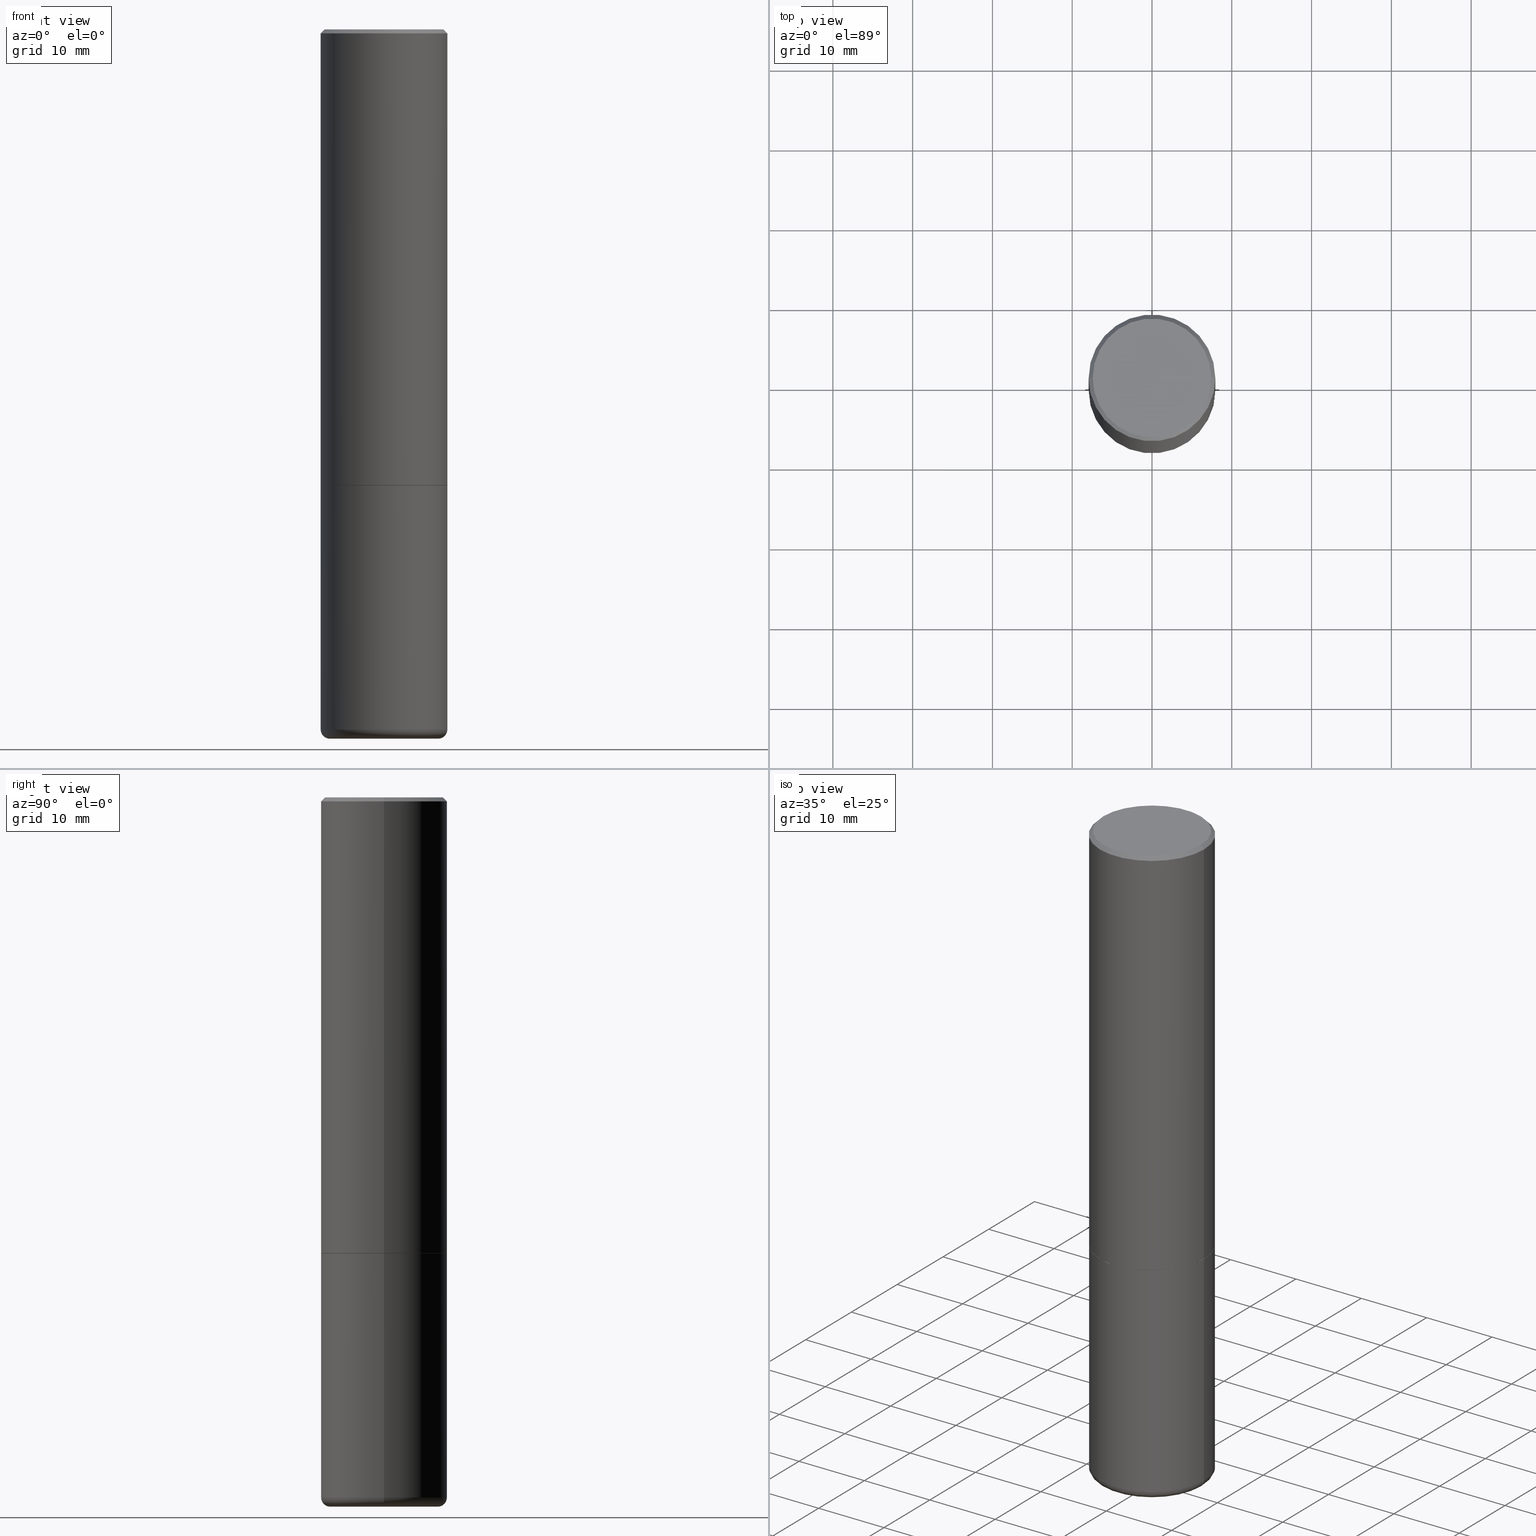
[diagram: canonical four-view strip — front | top / right | iso, engineering-drawing reading convention]
A machine part, canonical four-view strip (front | top / right | iso — engineering-drawing reading convention). The complete STEP part file that produces these views, byte-faithful:
ISO-10303-21;
HEADER;
FILE_DESCRIPTION (( 'STEP AP203' ),
    '1' );
FILE_NAME ('38182.STEP',
    '2023-03-22T20:30:40',
    ( '' ),
    ( '' ),
    'SwSTEP 2.0',
    'SolidWorks 2022',
    '' );
FILE_SCHEMA (( 'CONFIG_CONTROL_DESIGN' ));
ENDSEC;

DATA;
#1 = CARTESIAN_POINT ( 'NONE',  ( 4.890937612370276662E-31, -6.982962677686296539E-17, -0.02000000000000001776 ) ) ;
#2 = EDGE_CURVE ( 'NONE', #299, #61, #117, .T. ) ;
#3 = CONICAL_SURFACE ( 'NONE', #217, 751.2258538476612557, 1.518436449235073260 ) ;
#4 = ORIENTED_EDGE ( 'NONE', *, *, #275, .F. ) ;
#5 =( LENGTH_UNIT ( ) NAMED_UNIT ( * ) SI_UNIT ( $, .METRE. ) );
#6 = ADVANCED_FACE ( 'NONE', ( #432 ), #110, .T. ) ;
#7 = VERTEX_POINT ( 'NONE', #430 ) ;
#8 = FACE_OUTER_BOUND ( 'NONE', #191, .T. ) ;
#9 = CARTESIAN_POINT ( 'NONE',  ( 0.3125000000000000000, -1.003800884917403364E-14, -2.249999999999999556 ) ) ;
#10 = AXIS2_PLACEMENT_3D ( 'NONE', #254, #113, #114 ) ;
#11 = CIRCLE ( 'NONE', #212, 0.3124999999999998335 ) ;
#12 = EDGE_CURVE ( 'NONE', #231, #301, #193, .T. ) ;
#13 = PERSON_AND_ORGANIZATION ( #100, #150 ) ;
#14 = DATE_TIME_ROLE ( 'creation_date' ) ;
#15 = ORIENTED_EDGE ( 'NONE', *, *, #422, .F. ) ;
#16 = CIRCLE ( 'NONE', #223, 0.3114999999999999991 ) ;
#17 = COORDINATED_UNIVERSAL_TIME_OFFSET ( 5, 0, .BEHIND. ) ;
#18 = DIRECTION ( 'NONE',  ( 1.000000000000000000, -6.982962677686265922E-15, 0.000000000000000000 ) ) ;
#19 = CALENDAR_DATE ( 2023, 22, 3 ) ;
#20 = DIRECTION ( 'NONE',  ( -2.445468806185136597E-29, 3.491481338843145583E-15, 1.000000000000000000 ) ) ;
#21 = EDGE_CURVE ( 'NONE', #227, #231, #427, .T. ) ;
#22 = CARTESIAN_POINT ( 'NONE',  ( -0.2651448819690678804, -1.008952714362760311E-14, -3.500000000000000000 ) ) ;
#23 = EDGE_CURVE ( 'NONE', #108, #7, #323, .T. ) ;
#24 = AXIS2_PLACEMENT_3D ( 'NONE', #200, #168, #278 ) ;
#25 = EDGE_CURVE ( 'NONE', #374, #132, #16, .T. ) ;
#26 = DIRECTION ( 'NONE',  ( -2.445468806185136597E-29, 3.491481338843145583E-15, 1.000000000000000000 ) ) ;
#27 = FACE_OUTER_BOUND ( 'NONE', #367, .T. ) ;
#28 = ORIENTED_EDGE ( 'NONE', *, *, #111, .F. ) ;
#29 = PLANE ( 'NONE',  #419 ) ;
#30 = DIMENSIONAL_EXPONENTS ( 1.000000000000000000, 0.000000000000000000, 0.000000000000000000, 0.000000000000000000, 0.000000000000000000, 0.000000000000000000, 0.000000000000000000 ) ;
#31 = CONICAL_SURFACE ( 'NONE', #140, 0.3114999999999999991, 0.7853981633972775267 ) ;
#32 = DIRECTION ( 'NONE',  ( -2.445468806185136597E-29, 3.491481338843145583E-15, 1.000000000000000000 ) ) ;
#33 = VERTEX_POINT ( 'NONE', #289 ) ;
#34 = DIRECTION ( 'NONE',  ( 1.000000000000000000, -6.982962677686266711E-15, 4.876176775795935232E-29 ) ) ;
#35 = ORIENTED_EDGE ( 'NONE', *, *, #89, .F. ) ;
#36 = DIRECTION ( 'NONE',  ( -2.445468806185136877E-29, 3.491481338843145188E-15, 1.000000000000000000 ) ) ;
#37 = ORIENTED_EDGE ( 'NONE', *, *, #23, .F. ) ;
#38 = ADVANCED_FACE ( 'NONE', ( #118 ), #214, .T. ) ;
#39 = FACE_OUTER_BOUND ( 'NONE', #338, .T. ) ;
#40 = AXIS2_PLACEMENT_3D ( 'NONE', #375, #71, #169 ) ;
#41 = DIRECTION ( 'NONE',  ( 2.445468806185136597E-29, -3.491481338843145583E-15, -1.000000000000000000 ) ) ;
#42 = DIRECTION ( 'NONE',  ( 0.7071067811865469066, -7.319954787623252890E-15, -0.7071067811865479058 ) ) ;
#43 = FACE_OUTER_BOUND ( 'NONE', #72, .T. ) ;
#44 = CALENDAR_DATE ( 2023, 22, 3 ) ;
#45 = CARTESIAN_POINT ( 'NONE',  ( 5.502304813916556222E-29, -7.855833012397075293E-15, -2.249999999999999556 ) ) ;
#46 = COORDINATED_UNIVERSAL_TIME_OFFSET ( 5, 0, .BEHIND. ) ;
#47 = EDGE_CURVE ( 'NONE', #61, #299, #149, .T. ) ;
#48 = MECHANICAL_CONTEXT ( 'NONE', #339, 'mechanical' ) ;
#49 = CC_DESIGN_DATE_AND_TIME_ASSIGNMENT ( #355, #14, ( #267 ) ) ;
#50 = CIRCLE ( 'NONE', #326, 0.3125000000000000000 ) ;
#51 = LOCAL_TIME ( 16, 30, 40.00000000000000000, #46 ) ;
#52 = COORDINATED_UNIVERSAL_TIME_OFFSET ( 5, 0, .BEHIND. ) ;
#53 = DIRECTION ( 'NONE',  ( 1.000000000000000000, -6.982962677686266711E-15, 4.876176775795936353E-29 ) ) ;
#54 = PERSON_AND_ORGANIZATION_ROLE ( 'design_supplier' ) ;
#55 = DIRECTION ( 'NONE',  ( 1.000000000000000000, -6.982962677686265922E-15, 0.000000000000000000 ) ) ;
#56 = DIRECTION ( 'NONE',  ( -2.445468806185136597E-29, 3.491481338843145583E-15, 1.000000000000000000 ) ) ;
#57 = ORIENTED_EDGE ( 'NONE', *, *, #335, .T. ) ;
#58 = FACE_OUTER_BOUND ( 'NONE', #370, .T. ) ;
#59 = ORIENTED_EDGE ( 'NONE', *, *, #89, .T. ) ;
#60 = CARTESIAN_POINT ( 'NONE',  ( -2.050015395373058161E-19, -1.217166826773992568E-14, -3.486104345547738514 ) ) ;
#61 = VERTEX_POINT ( 'NONE', #22 ) ;
#62 = AXIS2_PLACEMENT_3D ( 'NONE', #154, #32, #440 ) ;
#63 = CARTESIAN_POINT ( 'NONE',  ( -0.3125000000000000000, -7.739112131260931893E-15, -3.455061670936044216 ) ) ;
#64 = CARTESIAN_POINT ( 'NONE',  ( -0.3125000000000000000, -1.740639529667232739E-15, -2.248999999999999222 ) ) ;
#65 = ORIENTED_EDGE ( 'NONE', *, *, #116, .T. ) ;
#66 = CARTESIAN_POINT ( 'NONE',  ( 1.048034588882512041E-27, -1.496315634977850062E-13, -42.85618308570521862 ) ) ;
#67 = CARTESIAN_POINT ( 'NONE',  ( 4.890937612370276662E-31, -6.982962677686296539E-17, -0.02000000000000001776 ) ) ;
#68 = CIRCLE ( 'NONE', #40, 0.3125000000000000000 ) ;
#69 = CC_DESIGN_SECURITY_CLASSIFICATION ( #402, ( #256 ) ) ;
#70 = DIRECTION ( 'NONE',  ( -1.000000000000000000, 6.982962677686265133E-15, 0.000000000000000000 ) ) ;
#71 = DIRECTION ( 'NONE',  ( -2.445468806185136597E-29, 3.491481338843145583E-15, 1.000000000000000000 ) ) ;
#72 = EDGE_LOOP ( 'NONE', ( #90, #59, #164, #198 ) ) ;
#73 = CARTESIAN_POINT ( 'NONE',  ( 8.559140821647976968E-29, -1.222018468595100934E-14, -3.500000000000000000 ) ) ;
#74 = CONICAL_SURFACE ( 'NONE', #318, 0.3124999999999998335, 0.7853981633974476129 ) ;
#75 = VERTEX_POINT ( 'NONE', #315 ) ;
#76 = CALENDAR_DATE ( 2023, 22, 3 ) ;
#77 = DIRECTION ( 'NONE',  ( 0.000000000000000000, 0.000000000000000000, 1.000000000000000000 ) ) ;
#78 = DIRECTION ( 'NONE',  ( 1.000000000000000000, -6.982962677686266711E-15, 0.000000000000000000 ) ) ;
#79 = PERSON_AND_ORGANIZATION_ROLE ( 'classification_officer' ) ;
#80 = TOROIDAL_SURFACE ( 'NONE', #180, 0.2675000000000000155, 0.04499999999999999140 ) ;
#81 =( NAMED_UNIT ( * ) PLANE_ANGLE_UNIT ( ) SI_UNIT ( $, .RADIAN. ) );
#82 = CARTESIAN_POINT ( 'NONE',  ( 8.449245539719989979E-29, -1.206328334862541465E-14, -3.455061670936044216 ) ) ;
#83 = APPROVAL ( #384, 'UNSPECIFIED' ) ;
#84 = CARTESIAN_POINT ( 'NONE',  ( 2.042516583223231356E-15, 0.2924999999999998157, -1.019124035366569212E-15 ) ) ;
#85 = ORIENTED_EDGE ( 'NONE', *, *, #207, .T. ) ;
#86 = ADVANCED_FACE ( 'NONE', ( #282 ), #251, .T. ) ;
#87 = CIRCLE ( 'NONE', #62, 0.3125000000000000000 ) ;
#88 = CARTESIAN_POINT ( 'NONE',  ( 0.000000000000000000, 0.000000000000000000, 0.000000000000000000 ) ) ;
#89 = EDGE_CURVE ( 'NONE', #132, #374, #253, .T. ) ;
#90 = ORIENTED_EDGE ( 'NONE', *, *, #141, .F. ) ;
#91 = APPROVAL ( #351, 'UNSPECIFIED' ) ;
#92 = CARTESIAN_POINT ( 'NONE',  ( 0.3125000000000000000, -2.182175836776958347E-15, 1.523805242436230075E-29 ) ) ;
#93 = ORIENTED_EDGE ( 'NONE', *, *, #103, .T. ) ;
#94 = ADVANCED_FACE ( 'NONE', ( #400 ), #157, .T. ) ;
#95 = CARTESIAN_POINT ( 'NONE',  ( 2.050015397078090200E-19, -1.217166826773992568E-14, -3.486104345547738514 ) ) ;
#96 = ORIENTED_EDGE ( 'NONE', *, *, #237, .F. ) ;
#97 = CONICAL_SURFACE ( 'NONE', #293, 0.3124999999999998335, 0.7853981633974476129 ) ;
#98 = DIRECTION ( 'NONE',  ( 1.000000000000000000, -6.982962677686265922E-15, 0.000000000000000000 ) ) ;
#99 = EDGE_LOOP ( 'NONE', ( #155, #403, #436, #96 ) ) ;
#100 = PERSON ( 'UNSPECIFIED', 'UNSPECIFIED', 'UNSPECIFIED', ('UNSPECIFIED'), ('UNSPECIFIED'), ('UNSPECIFIED') ) ;
#101 = CARTESIAN_POINT ( 'NONE',  ( 5.502304813916556222E-29, -7.855833012397076871E-15, -2.249999999999999556 ) ) ;
#102 = CARTESIAN_POINT ( 'NONE',  ( 2.182175836777013173E-15, 0.3124999999999921729, -2.250000000000000444 ) ) ;
#103 = EDGE_CURVE ( 'NONE', #61, #227, #437, .T. ) ;
#104 = CARTESIAN_POINT ( 'NONE',  ( 0.3124999999999998890, -2.182175836776957558E-15, 1.523805242436229235E-29 ) ) ;
#105 = AXIS2_PLACEMENT_3D ( 'NONE', #222, #438, #297 ) ;
#106 = LOCAL_TIME ( 16, 30, 40.00000000000000000, #394 ) ;
#107 = CARTESIAN_POINT ( 'NONE',  ( 0.2924999999999998157, -2.110215457714318748E-15, 4.268512490114932791E-18 ) ) ;
#108 = VERTEX_POINT ( 'NONE', #294 ) ;
#109 = DIRECTION ( 'NONE',  ( 1.000000000000000000, -6.982962677686266711E-15, 4.876176775795936353E-29 ) ) ;
#110 = CYLINDRICAL_SURFACE ( 'NONE', #347, 0.3125000000000000000 ) ;
#111 = EDGE_CURVE ( 'NONE', #330, #227, #284, .T. ) ;
#112 = PERSON_AND_ORGANIZATION ( #100, #150 ) ;
#113 = DIRECTION ( 'NONE',  ( -2.445468806185136597E-29, 3.491481338843145583E-15, 1.000000000000000000 ) ) ;
#114 = DIRECTION ( 'NONE',  ( 1.000000000000000000, -6.982962677686269077E-15, 4.883557194083114022E-29 ) ) ;
#115 = CC_DESIGN_APPROVAL ( #358, ( #267 ) ) ;
#116 = EDGE_CURVE ( 'NONE', #7, #421, #426, .T. ) ;
#117 = CIRCLE ( 'NONE', #210, 0.2651448819690678804 ) ;
#118 = FACE_OUTER_BOUND ( 'NONE', #208, .T. ) ;
#119 = MANIFOLD_SOLID_BREP ( 'Body-Move/Copy2[1]', #313 ) ;
#120 = CARTESIAN_POINT ( 'NONE',  ( 5.499859345110370619E-29, -7.852341531058232286E-15, -2.248999999999999222 ) ) ;
#121 = EDGE_LOOP ( 'NONE', ( #364, #328, #349 ) ) ;
#122 = CARTESIAN_POINT ( 'NONE',  ( -0.2675000000000000155, -1.016258153046714615E-14, -3.455061670936044216 ) ) ;
#123 = ORIENTED_EDGE ( 'NONE', *, *, #257, .T. ) ;
#124 = LOCAL_TIME ( 16, 30, 40.00000000000000000, #17 ) ;
#125 = MANIFOLD_SOLID_BREP ( 'Body-Move/Copy2[2]', #204 ) ;
#126 = DIRECTION ( 'NONE',  ( -2.438088387897960049E-29, 3.491481338843145188E-15, 1.000000000000000000 ) ) ;
#127 = EDGE_LOOP ( 'NONE', ( #398, #439, #85, #336 ) ) ;
#128 = PRODUCT ( '38182', '38182', '', ( #48 ) ) ;
#129 = DIRECTION ( 'NONE',  ( -2.445468806185136597E-29, 3.491481338843145583E-15, 1.000000000000000000 ) ) ;
#130 = ADVANCED_FACE ( 'NONE', ( #27 ), #80, .T. ) ;
#131 = CARTESIAN_POINT ( 'NONE',  ( 0.3124999999999998335, -2.213735251080465334E-15, -0.02000000000000001776 ) ) ;
#132 = VERTEX_POINT ( 'NONE', #435 ) ;
#133 = VECTOR ( 'NONE', #363, 39.37007874015748143 ) ;
#134 = DIRECTION ( 'NONE',  ( -1.000000000000000000, 6.982962677686266711E-15, 0.000000000000000000 ) ) ;
#135 = LOCAL_TIME ( 16, 30, 40.00000000000000000, #52 ) ;
#136 = ORIENTED_EDGE ( 'NONE', *, *, #23, .T. ) ;
#137 = LINE ( 'NONE', #276, #224 ) ;
#138 = DIRECTION ( 'NONE',  ( 1.000000000000000000, -6.982962677686265133E-15, 0.000000000000000000 ) ) ;
#139 = EDGE_CURVE ( 'NONE', #376, #33, #50, .T. ) ;
#140 = AXIS2_PLACEMENT_3D ( 'NONE', #101, #279, #98 ) ;
#141 = EDGE_CURVE ( 'NONE', #132, #376, #185, .T. ) ;
#142 = SECURITY_CLASSIFICATION_LEVEL ( 'unclassified' ) ;
#143 = PERSON_AND_ORGANIZATION ( #100, #150 ) ;
#144 = DIRECTION ( 'NONE',  ( -2.445468806185136597E-29, 3.491481338843145583E-15, 1.000000000000000000 ) ) ;
#145 = VECTOR ( 'NONE', #209, 39.37007874015748143 ) ;
#146 = DATE_AND_TIME ( #211, #106 ) ;
#147 = DIRECTION ( 'NONE',  ( 1.000000000000000000, 0.000000000000000000, 0.000000000000000000 ) ) ;
#148 = DIRECTION ( 'NONE',  ( -2.445468806185136877E-29, 3.491481338843145188E-15, 1.000000000000000000 ) ) ;
#149 = CIRCLE ( 'NONE', #196, 0.2651448819690678804 ) ;
#150 = ORGANIZATION ( 'UNSPECIFIED', 'UNSPECIFIED', '' ) ;
#151 = CARTESIAN_POINT ( 'NONE',  ( 5.502304813916556222E-29, -7.855833012397076871E-15, -2.249999999999999556 ) ) ;
#152 = CYLINDRICAL_SURFACE ( 'NONE', #341, 0.3124999999999998890 ) ;
#153 = ORIENTED_EDGE ( 'NONE', *, *, #47, .T. ) ;
#154 = CARTESIAN_POINT ( 'NONE',  ( 8.449245539719989979E-29, -1.206328334862541465E-14, -3.455061670936044216 ) ) ;
#155 = ORIENTED_EDGE ( 'NONE', *, *, #429, .T. ) ;
#156 = AXIS2_PLACEMENT_3D ( 'NONE', #88, #56, #34 ) ;
#157 = CYLINDRICAL_SURFACE ( 'NONE', #156, 0.3124999999999998890 ) ;
#158 = ORIENTED_EDGE ( 'NONE', *, *, #335, .F. ) ;
#159 = DIRECTION ( 'NONE',  ( 1.000000000000000000, -6.982962677686266711E-15, 4.876067333457692840E-29 ) ) ;
#160 = ORIENTED_EDGE ( 'NONE', *, *, #25, .F. ) ;
#161 = ADVANCED_FACE ( 'NONE', ( #58 ), #325, .F. ) ;
#162 = CC_DESIGN_PERSON_AND_ORGANIZATION_ASSIGNMENT ( #352, #178, ( #267 ) ) ;
#163 = CARTESIAN_POINT ( 'NONE',  ( 5.502304813916556222E-29, -7.855833012397075293E-15, -2.249999999999999556 ) ) ;
#164 = ORIENTED_EDGE ( 'NONE', *, *, #422, .T. ) ;
#165 = VECTOR ( 'NONE', #247, 39.37007874015748854 ) ;
#166 = CONICAL_SURFACE ( 'NONE', #24, 0.3114999999999999991, 0.7853981633972775267 ) ;
#167 = CARTESIAN_POINT ( 'NONE',  ( 0.3124999999999998335, -2.213735251080465334E-15, -0.02000000000000001776 ) ) ;
#168 = DIRECTION ( 'NONE',  ( -2.445468806185136597E-29, 3.491481338843145583E-15, 1.000000000000000000 ) ) ;
#169 = DIRECTION ( 'NONE',  ( 1.000000000000000000, -6.982962677686269077E-15, 0.000000000000000000 ) ) ;
#170 = EDGE_CURVE ( 'NONE', #299, #330, #187, .T. ) ;
#171 = DIRECTION ( 'NONE',  ( -2.445468806185136597E-29, 3.491481338843145583E-15, 1.000000000000000000 ) ) ;
#172 = CONICAL_SURFACE ( 'NONE', #361, 751.2258538476612557, 1.518436449235073260 ) ;
#173 = ADVANCED_FACE ( 'NONE', ( #331 ), #152, .T. ) ;
#174 = CC_DESIGN_PERSON_AND_ORGANIZATION_ASSIGNMENT ( #13, #244, ( #128 ) ) ;
#175 = DIRECTION ( 'NONE',  ( 1.000000000000000000, -6.982962677686266711E-15, 0.000000000000000000 ) ) ;
#176 = ORIENTED_EDGE ( 'NONE', *, *, #302, .F. ) ;
#177 = LENGTH_MEASURE_WITH_UNIT ( LENGTH_MEASURE( 0.02539999999999999897 ), #5 );
#178 = PERSON_AND_ORGANIZATION_ROLE ( 'creator' ) ;
#179 = CARTESIAN_POINT ( 'NONE',  ( 0.000000000000000000, 0.000000000000000000, 0.000000000000000000 ) ) ;
#180 = AXIS2_PLACEMENT_3D ( 'NONE', #221, #229, #360 ) ;
#181 = COORDINATED_UNIVERSAL_TIME_OFFSET ( 5, 0, .BEHIND. ) ;
#182 = CARTESIAN_POINT ( 'NONE',  ( 5.502304813916556222E-29, -7.855833012397076871E-15, -2.249999999999999556 ) ) ;
#183 = APPROVAL_DATE_TIME ( #283, #91 ) ;
#184 = ORIENTED_EDGE ( 'NONE', *, *, #203, .F. ) ;
#185 = LINE ( 'NONE', #365, #133 ) ;
#186 = EDGE_CURVE ( 'NONE', #75, #61, #329, .T. ) ;
#187 = CIRCLE ( 'NONE', #105, 0.04499999999999999833 ) ;
#188 = DIRECTION ( 'NONE',  ( 1.000000000000000000, -6.982962677686266711E-15, 0.000000000000000000 ) ) ;
#189 = EDGE_LOOP ( 'NONE', ( #307, #236, #265, #304 ) ) ;
#190 = DIRECTION ( 'NONE',  ( 1.000000000000000000, -6.982962677686265922E-15, 4.876176775795935793E-29 ) ) ;
#191 = EDGE_LOOP ( 'NONE', ( #381, #386 ) ) ;
#192 = CARTESIAN_POINT ( 'NONE',  ( 4.890937612370276662E-31, -6.982962677686296539E-17, -0.02000000000000001776 ) ) ;
#193 = CIRCLE ( 'NONE', #371, 0.3125000000000000000 ) ;
#194 = EDGE_LOOP ( 'NONE', ( #416, #262, #4, #272 ) ) ;
#195 = VECTOR ( 'NONE', #368, 39.37007874015748854 ) ;
#196 = AXIS2_PLACEMENT_3D ( 'NONE', #219, #385, #175 ) ;
#197 = CARTESIAN_POINT ( 'NONE',  ( -1.043851414335219820E-46, 1.490343170380447200E-32, 4.268512490100411279E-18 ) ) ;
#198 = ORIENTED_EDGE ( 'NONE', *, *, #139, .F. ) ;
#199 = ADVANCED_FACE ( 'NONE', ( #397 ), #29, .F. ) ;
#200 = CARTESIAN_POINT ( 'NONE',  ( 5.502304813916556222E-29, -7.855833012397076871E-15, -2.249999999999999556 ) ) ;
#201 = ORIENTED_EDGE ( 'NONE', *, *, #141, .T. ) ;
#202 = PLANE ( 'NONE',  #246 ) ;
#203 = EDGE_CURVE ( 'NONE', #227, #330, #87, .T. ) ;
#204 = CLOSED_SHELL ( 'NONE', ( #383, #94, #366, #287, #173, #292, #161, #199 ) ) ;
#205 = CARTESIAN_POINT ( 'NONE',  ( 0.3114999999999999991, -1.003102588649634920E-14, -2.249999999999999556 ) ) ;
#206 = FACE_OUTER_BOUND ( 'NONE', #225, .T. ) ;
#207 = EDGE_CURVE ( 'NONE', #330, #301, #296, .T. ) ;
#208 = EDGE_LOOP ( 'NONE', ( #420, #153, #353, #184 ) ) ;
#209 = DIRECTION ( 'NONE',  ( -2.445468806185136877E-29, 3.491481338843145188E-15, 1.000000000000000000 ) ) ;
#210 = AXIS2_PLACEMENT_3D ( 'NONE', #73, #291, #78 ) ;
#211 = CALENDAR_DATE ( 2023, 22, 3 ) ;
#212 = AXIS2_PLACEMENT_3D ( 'NONE', #346, #382, #377 ) ;
#213 = APPROVAL_PERSON_ORGANIZATION ( #389, #83, #319 ) ;
#214 = TOROIDAL_SURFACE ( 'NONE', #10, 0.2675000000000000155, 0.04499999999999999140 ) ;
#215 = DATE_TIME_ROLE ( 'classification_date' ) ;
#216 = APPLICATION_PROTOCOL_DEFINITION ( 'international standard', 'config_control_design', 1994, #413 ) ;
#217 = AXIS2_PLACEMENT_3D ( 'NONE', #66, #418, #310 ) ;
#218 = APPROVAL_DATE_TIME ( #146, #83 ) ;
#219 = CARTESIAN_POINT ( 'NONE',  ( 8.559140821647976968E-29, -1.222018468595100934E-14, -3.500000000000000000 ) ) ;
#220 = EDGE_CURVE ( 'NONE', #75, #299, #407, .T. ) ;
#221 = CARTESIAN_POINT ( 'NONE',  ( 8.449245539719989979E-29, -1.206328334862541465E-14, -3.455061670936044216 ) ) ;
#222 = CARTESIAN_POINT ( 'NONE',  ( 0.2675000000000000155, -1.393122586490649131E-14, -3.455061670936044216 ) ) ;
#223 = AXIS2_PLACEMENT_3D ( 'NONE', #390, #321, #18 ) ;
#224 = VECTOR ( 'NONE', #235, 39.37007874015748143 ) ;
#225 = EDGE_LOOP ( 'NONE', ( #441, #356, #277 ) ) ;
#226 = DIRECTION ( 'NONE',  ( 1.000000000000000000, -6.982962677686269077E-15, 0.000000000000000000 ) ) ;
#227 = VERTEX_POINT ( 'NONE', #63 ) ;
#228 = DIRECTION ( 'NONE',  ( -2.445468806185136597E-29, 3.491481338843145583E-15, 1.000000000000000000 ) ) ;
#229 = DIRECTION ( 'NONE',  ( -2.445468806185136597E-29, 3.491481338843145583E-15, 1.000000000000000000 ) ) ;
#230 = EDGE_CURVE ( 'NONE', #108, #239, #387, .T. ) ;
#231 = VERTEX_POINT ( 'NONE', #303 ) ;
#232 = VECTOR ( 'NONE', #259, 39.37007874015748854 ) ;
#233 = DIRECTION ( 'NONE',  ( 1.000000000000000000, -6.982962677686266711E-15, 4.876067333457692840E-29 ) ) ;
#234 = EDGE_LOOP ( 'NONE', ( #406, #201, #242, #15 ) ) ;
#235 = DIRECTION ( 'NONE',  ( 0.7071067811864267805, -2.468850131080992517E-15, 0.7071067811866682540 ) ) ;
#236 = ORIENTED_EDGE ( 'NONE', *, *, #139, .T. ) ;
#237 = EDGE_CURVE ( 'NONE', #33, #421, #442, .T. ) ;
#238 = CARTESIAN_POINT ( 'NONE',  ( 1.048034588882512041E-27, -1.496315634977850062E-13, -42.85618308570521862 ) ) ;
#239 = VERTEX_POINT ( 'NONE', #107 ) ;
#240 = AXIS2_PLACEMENT_3D ( 'NONE', #163, #412, #138 ) ;
#241 = DIRECTION ( 'NONE',  ( 2.445468806185136597E-29, -3.491481338843145583E-15, -1.000000000000000000 ) ) ;
#242 = ORIENTED_EDGE ( 'NONE', *, *, #429, .F. ) ;
#243 = FACE_OUTER_BOUND ( 'NONE', #234, .T. ) ;
#244 = PERSON_AND_ORGANIZATION_ROLE ( 'design_owner' ) ;
#245 = PERSON_AND_ORGANIZATION ( #100, #150 ) ;
#246 = AXIS2_PLACEMENT_3D ( 'NONE', #102, #409, #340 ) ;
#247 = DIRECTION ( 'NONE',  ( -0.7071067811865469066, 2.468850131082251144E-15, -0.7071067811865479058 ) ) ;
#248 = CARTESIAN_POINT ( 'NONE',  ( -0.3125000000000000000, 2.220446049250313081E-15, -1.537167215704658232E-29 ) ) ;
#249 = ADVANCED_FACE ( 'NONE', ( #343 ), #3, .F. ) ;
#250 = DATE_AND_TIME ( #19, #286 ) ;
#251 = CYLINDRICAL_SURFACE ( 'NONE', #433, 0.3125000000000000000 ) ;
#252 = APPROVAL_DATE_TIME ( #250, #358 ) ;
#253 = CIRCLE ( 'NONE', #311, 0.3114999999999999991 ) ;
#254 = CARTESIAN_POINT ( 'NONE',  ( 8.449245539719989979E-29, -1.206328334862541465E-14, -3.455061670936044216 ) ) ;
#255 = VECTOR ( 'NONE', #42, 39.37007874015748854 ) ;
#256 = PRODUCT_DEFINITION_FORMATION_WITH_SPECIFIED_SOURCE ( 'ANY', '', #128, .NOT_KNOWN. ) ;
#257 = EDGE_CURVE ( 'NONE', #421, #7, #11, .T. ) ;
#258 = DIRECTION ( 'NONE',  ( -1.000000000000000000, 7.105427357600990815E-15, 0.000000000000000000 ) ) ;
#259 = DIRECTION ( 'NONE',  ( -0.9986295347545742773, 6.790662755453664522E-15, -0.05233595624293731902 ) ) ;
#260 = DIRECTION ( 'NONE',  ( 7.105427357601001859E-15, 1.000000000000000000, -3.491481338843145583E-15 ) ) ;
#261 = CIRCLE ( 'NONE', #298, 0.2924999999999998157 ) ;
#262 = ORIENTED_EDGE ( 'NONE', *, *, #21, .T. ) ;
#263 = SHAPE_DEFINITION_REPRESENTATION ( #270, #373 ) ;
#264 = DIRECTION ( 'NONE',  ( -1.000000000000000000, 6.982962677686265922E-15, -4.876176775795935793E-29 ) ) ;
#265 = ORIENTED_EDGE ( 'NONE', *, *, #237, .T. ) ;
#266 = ADVANCED_FACE ( 'NONE', ( #8 ), #202, .F. ) ;
#267 = PRODUCT_DEFINITION ( 'UNKNOWN', '', #256, #379 ) ;
#268 = DIRECTION ( 'NONE',  ( -2.445468806185136877E-29, 3.491481338843145188E-15, 1.000000000000000000 ) ) ;
#269 = ORIENTED_EDGE ( 'NONE', *, *, #230, .F. ) ;
#271 = CARTESIAN_POINT ( 'NONE',  ( 0.3125000000000000000, -1.424545918540237458E-14, -3.455061670936044216 ) ) ;
#270 = PRODUCT_DEFINITION_SHAPE ( 'NONE', 'NONE',  #267 ) ;
#272 = ORIENTED_EDGE ( 'NONE', *, *, #207, .F. ) ;
#273 = VECTOR ( 'NONE', #36, 39.37007874015748143 ) ;
#274 = APPROVAL_PERSON_ORGANIZATION ( #143, #91, #290 ) ;
#275 = EDGE_CURVE ( 'NONE', #301, #231, #308, .T. ) ;
#276 = CARTESIAN_POINT ( 'NONE',  ( 0.3114999999999999991, -1.003102588649634920E-14, -2.249999999999999556 ) ) ;
#277 = ORIENTED_EDGE ( 'NONE', *, *, #47, .F. ) ;
#278 = DIRECTION ( 'NONE',  ( 1.000000000000000000, -6.982962677686265922E-15, 0.000000000000000000 ) ) ;
#279 = DIRECTION ( 'NONE',  ( -2.445468806185136597E-29, 3.491481338843145583E-15, 1.000000000000000000 ) ) ;
#280 = AXIS2_PLACEMENT_3D ( 'NONE', #192, #228, #188 ) ;
#281 =( NAMED_UNIT ( * ) SI_UNIT ( $, .STERADIAN. ) SOLID_ANGLE_UNIT ( ) );
#282 = FACE_OUTER_BOUND ( 'NONE', #127, .T. ) ;
#283 = DATE_AND_TIME ( #316, #51 ) ;
#284 = CIRCLE ( 'NONE', #401, 0.3125000000000000000 ) ;
#285 = DIRECTION ( 'NONE',  ( 1.000000000000000000, -6.982962677686265133E-15, 0.000000000000000000 ) ) ;
#286 = LOCAL_TIME ( 16, 30, 40.00000000000000000, #181 ) ;
#287 = ADVANCED_FACE ( 'NONE', ( #305 ), #74, .T. ) ;
#288 = APPROVAL_ROLE ( '' ) ;
#289 = CARTESIAN_POINT ( 'NONE',  ( 0.3125000000000000000, -1.003451736783519063E-14, -2.248999999999999222 ) ) ;
#290 = APPROVAL_ROLE ( '' ) ;
#291 = DIRECTION ( 'NONE',  ( -2.445468806185136597E-29, 3.491481338843145583E-15, 1.000000000000000000 ) ) ;
#292 = ADVANCED_FACE ( 'NONE', ( #43 ), #31, .T. ) ;
#293 = AXIS2_PLACEMENT_3D ( 'NONE', #1, #241, #342 ) ;
#294 = CARTESIAN_POINT ( 'NONE',  ( -0.2924999999999998157, 2.077431396611662611E-15, 4.268512490086005323E-18 ) ) ;
#295 = CC_DESIGN_DATE_AND_TIME_ASSIGNMENT ( #322, #215, ( #402 ) ) ;
#296 = LINE ( 'NONE', #92, #332 ) ;
#297 = DIRECTION ( 'NONE',  ( 1.000000000000000000, -6.982962677686269077E-15, 0.000000000000000000 ) ) ;
#298 = AXIS2_PLACEMENT_3D ( 'NONE', #372, #171, #233 ) ;
#299 = VERTEX_POINT ( 'NONE', #337 ) ;
#300 = DIRECTION ( 'NONE',  ( 2.438088387897960049E-29, -3.491481338843145188E-15, -1.000000000000000000 ) ) ;
#301 = VERTEX_POINT ( 'NONE', #9 ) ;
#302 = EDGE_CURVE ( 'NONE', #239, #108, #261, .T. ) ;
#303 = CARTESIAN_POINT ( 'NONE',  ( -0.3125000000000000000, -7.739112131260931893E-15, -2.249999999999999556 ) ) ;
#304 = ORIENTED_EDGE ( 'NONE', *, *, #116, .F. ) ;
#305 = FACE_OUTER_BOUND ( 'NONE', #344, .T. ) ;
#306 = VECTOR ( 'NONE', #148, 39.37007874015748143 ) ;
#307 = ORIENTED_EDGE ( 'NONE', *, *, #404, .F. ) ;
#308 = CIRCLE ( 'NONE', #240, 0.3125000000000000000 ) ;
#309 = LINE ( 'NONE', #131, #255 ) ;
#310 = DIRECTION ( 'NONE',  ( -1.000000000000000000, 6.982962677686266711E-15, 0.000000000000000000 ) ) ;
#311 = AXIS2_PLACEMENT_3D ( 'NONE', #182, #20, #55 ) ;
#312 = DIRECTION ( 'NONE',  ( 2.445468806185136597E-29, -3.491481338843145583E-15, -1.000000000000000000 ) ) ;
#313 = CLOSED_SHELL ( 'NONE', ( #415, #130, #6, #266, #86, #38, #249 ) ) ;
#314 = PERSON_AND_ORGANIZATION ( #100, #150 ) ;
#315 = CARTESIAN_POINT ( 'NONE',  ( 8.525016280333439783E-29, -1.217187326927954647E-14, -3.486104345547738514 ) ) ;
#316 = CALENDAR_DATE ( 2023, 22, 3 ) ;
#317 = ORIENTED_EDGE ( 'NONE', *, *, #230, .T. ) ;
#318 = AXIS2_PLACEMENT_3D ( 'NONE', #67, #312, #70 ) ;
#319 = APPROVAL_ROLE ( '' ) ;
#320 = CC_DESIGN_APPROVAL ( #83, ( #256 ) ) ;
#321 = DIRECTION ( 'NONE',  ( -2.445468806185136597E-29, 3.491481338843145583E-15, 1.000000000000000000 ) ) ;
#322 = DATE_AND_TIME ( #76, #135 ) ;
#323 = LINE ( 'NONE', #395, #165 ) ;
#324 = DIRECTION ( 'NONE',  ( -2.445468806185136597E-29, 3.491481338843145583E-15, 1.000000000000000000 ) ) ;
#325 = PLANE ( 'NONE',  #354 ) ;
#326 = AXIS2_PLACEMENT_3D ( 'NONE', #120, #129, #359 ) ;
#327 = DIRECTION ( 'NONE',  ( -2.445468806185136597E-29, 3.491481338843145583E-15, 1.000000000000000000 ) ) ;
#328 = ORIENTED_EDGE ( 'NONE', *, *, #186, .T. ) ;
#329 = LINE ( 'NONE', #60, #232 ) ;
#330 = VERTEX_POINT ( 'NONE', #271 ) ;
#331 = FACE_OUTER_BOUND ( 'NONE', #189, .T. ) ;
#332 = VECTOR ( 'NONE', #268, 39.37007874015748143 ) ;
#333 = ORIENTED_EDGE ( 'NONE', *, *, #170, .F. ) ;
#334 = DIRECTION ( 'NONE',  ( -2.445468806185136597E-29, 3.491481338843145583E-15, 1.000000000000000000 ) ) ;
#335 = EDGE_CURVE ( 'NONE', #239, #421, #309, .T. ) ;
#336 = ORIENTED_EDGE ( 'NONE', *, *, #12, .F. ) ;
#337 = CARTESIAN_POINT ( 'NONE',  ( 0.2651448819690678804, -1.407168150092053958E-14, -3.500000000000000000 ) ) ;
#338 = EDGE_LOOP ( 'NONE', ( #176, #57, #123, #37 ) ) ;
#339 = APPLICATION_CONTEXT ( 'configuration controlled 3d designs of mechanical parts and assemblies' ) ;
#340 = DIRECTION ( 'NONE',  ( -1.000000000000000000, 6.982962677686265922E-15, -4.876176775795935793E-29 ) ) ;
#341 = AXIS2_PLACEMENT_3D ( 'NONE', #405, #26, #434 ) ;
#342 = DIRECTION ( 'NONE',  ( -1.000000000000000000, 6.982962677686265133E-15, 0.000000000000000000 ) ) ;
#343 = FACE_OUTER_BOUND ( 'NONE', #121, .T. ) ;
#344 = EDGE_LOOP ( 'NONE', ( #158, #269, #136, #65 ) ) ;
#345 = UNCERTAINTY_MEASURE_WITH_UNIT (LENGTH_MEASURE( 1.000000000000000082E-05 ), #424, 'distance_accuracy_value', 'NONE');
#346 = CARTESIAN_POINT ( 'NONE',  ( 4.890937612370276662E-31, -6.982962677686296539E-17, -0.02000000000000001776 ) ) ;
#347 = AXIS2_PLACEMENT_3D ( 'NONE', #179, #144, #109 ) ;
#348 =( GEOMETRIC_REPRESENTATION_CONTEXT ( 3 ) GLOBAL_UNCERTAINTY_ASSIGNED_CONTEXT ( ( #345 ) ) GLOBAL_UNIT_ASSIGNED_CONTEXT ( ( #424, #81, #281 ) ) REPRESENTATION_CONTEXT ( 'NONE', 'WORKASPACE' ) );
#349 = ORIENTED_EDGE ( 'NONE', *, *, #2, .F. ) ;
#350 = PRODUCT_RELATED_PRODUCT_CATEGORY ( 'detail', '', ( #128 ) ) ;
#351 = APPROVAL_STATUS ( 'not_yet_approved' ) ;
#352 = PERSON_AND_ORGANIZATION ( #100, #150 ) ;
#353 = ORIENTED_EDGE ( 'NONE', *, *, #170, .T. ) ;
#354 = AXIS2_PLACEMENT_3D ( 'NONE', #151, #126, #190 ) ;
#355 = DATE_AND_TIME ( #44, #124 ) ;
#356 = ORIENTED_EDGE ( 'NONE', *, *, #220, .T. ) ;
#357 = PERSON_AND_ORGANIZATION ( #100, #150 ) ;
#358 = APPROVAL ( #388, 'UNSPECIFIED' ) ;
#359 = DIRECTION ( 'NONE',  ( 1.000000000000000000, -6.982962677686269077E-15, 0.000000000000000000 ) ) ;
#360 = DIRECTION ( 'NONE',  ( 1.000000000000000000, -6.982962677686269077E-15, 4.883557194083114022E-29 ) ) ;
#361 = AXIS2_PLACEMENT_3D ( 'NONE', #238, #41, #134 ) ;
#362 = EDGE_LOOP ( 'NONE', ( #317, #411 ) ) ;
#363 = DIRECTION ( 'NONE',  ( -0.7071067811864267805, 7.493145998869918709E-15, 0.7071067811866682540 ) ) ;
#364 = ORIENTED_EDGE ( 'NONE', *, *, #220, .F. ) ;
#365 = CARTESIAN_POINT ( 'NONE',  ( -0.3114999999999999991, -5.642492390504364798E-15, -2.249999999999999556 ) ) ;
#366 = ADVANCED_FACE ( 'NONE', ( #39 ), #97, .T. ) ;
#367 = EDGE_LOOP ( 'NONE', ( #408, #93, #28, #333 ) ) ;
#368 = DIRECTION ( 'NONE',  ( 0.9986295347545742773, -7.033825938272000278E-15, -0.05233595624293731902 ) ) ;
#369 = CC_DESIGN_APPROVAL ( #91, ( #402 ) ) ;
#370 = EDGE_LOOP ( 'NONE', ( #160, #35 ) ) ;
#371 = AXIS2_PLACEMENT_3D ( 'NONE', #45, #324, #285 ) ;
#372 = CARTESIAN_POINT ( 'NONE',  ( -1.043851414335219820E-46, 1.490343170380447200E-32, 4.268512490100411279E-18 ) ) ;
#373 = ADVANCED_BREP_SHAPE_REPRESENTATION ( '38182', ( #119, #125, #378 ), #348 ) ;
#374 = VERTEX_POINT ( 'NONE', #205 ) ;
#375 = CARTESIAN_POINT ( 'NONE',  ( 5.499859345110370619E-29, -7.852341531058232286E-15, -2.248999999999999222 ) ) ;
#376 = VERTEX_POINT ( 'NONE', #64 ) ;
#377 = DIRECTION ( 'NONE',  ( 1.000000000000000000, -6.982962677686266711E-15, 0.000000000000000000 ) ) ;
#378 = AXIS2_PLACEMENT_3D ( 'NONE', #423, #77, #147 ) ;
#379 = DESIGN_CONTEXT ( 'detailed design', #413, 'design' ) ;
#380 = LINE ( 'NONE', #414, #273 ) ;
#381 = ORIENTED_EDGE ( 'NONE', *, *, #275, .T. ) ;
#382 = DIRECTION ( 'NONE',  ( -2.445468806185136597E-29, 3.491481338843145583E-15, 1.000000000000000000 ) ) ;
#383 = ADVANCED_FACE ( 'NONE', ( #243 ), #166, .T. ) ;
#384 = APPROVAL_STATUS ( 'not_yet_approved' ) ;
#385 = DIRECTION ( 'NONE',  ( -2.445468806185136597E-29, 3.491481338843145583E-15, 1.000000000000000000 ) ) ;
#386 = ORIENTED_EDGE ( 'NONE', *, *, #12, .T. ) ;
#387 = CIRCLE ( 'NONE', #431, 0.2924999999999998157 ) ;
#388 = APPROVAL_STATUS ( 'not_yet_approved' ) ;
#389 = PERSON_AND_ORGANIZATION ( #100, #150 ) ;
#390 = CARTESIAN_POINT ( 'NONE',  ( 5.502304813916556222E-29, -7.855833012397076871E-15, -2.249999999999999556 ) ) ;
#391 = PERSON_AND_ORGANIZATION_ROLE ( 'creator' ) ;
#392 = DIRECTION ( 'NONE',  ( -2.445468806185136597E-29, 3.491481338843145583E-15, 1.000000000000000000 ) ) ;
#393 = AXIS2_PLACEMENT_3D ( 'NONE', #122, #260, #258 ) ;
#394 = COORDINATED_UNIVERSAL_TIME_OFFSET ( 5, 0, .BEHIND. ) ;
#395 = CARTESIAN_POINT ( 'NONE',  ( -0.3124999999999998335, 2.112346210000093866E-15, -0.02000000000000001776 ) ) ;
#396 = CC_DESIGN_PERSON_AND_ORGANIZATION_ASSIGNMENT ( #245, #79, ( #402 ) ) ;
#397 = FACE_OUTER_BOUND ( 'NONE', #362, .T. ) ;
#398 = ORIENTED_EDGE ( 'NONE', *, *, #21, .F. ) ;
#399 = CC_DESIGN_PERSON_AND_ORGANIZATION_ASSIGNMENT ( #112, #54, ( #256 ) ) ;
#400 = FACE_OUTER_BOUND ( 'NONE', #99, .T. ) ;
#401 = AXIS2_PLACEMENT_3D ( 'NONE', #82, #327, #226 ) ;
#402 = SECURITY_CLASSIFICATION ( '', '', #142 ) ;
#403 = ORIENTED_EDGE ( 'NONE', *, *, #404, .T. ) ;
#404 = EDGE_CURVE ( 'NONE', #376, #7, #380, .T. ) ;
#405 = CARTESIAN_POINT ( 'NONE',  ( 0.000000000000000000, 0.000000000000000000, 0.000000000000000000 ) ) ;
#406 = ORIENTED_EDGE ( 'NONE', *, *, #25, .T. ) ;
#407 = LINE ( 'NONE', #95, #195 ) ;
#408 = ORIENTED_EDGE ( 'NONE', *, *, #2, .T. ) ;
#409 = DIRECTION ( 'NONE',  ( 2.438088387897960049E-29, -3.491481338843145188E-15, -1.000000000000000000 ) ) ;
#410 = APPROVAL_PERSON_ORGANIZATION ( #314, #358, #288 ) ;
#411 = ORIENTED_EDGE ( 'NONE', *, *, #302, .T. ) ;
#412 = DIRECTION ( 'NONE',  ( -2.445468806185136597E-29, 3.491481338843145583E-15, 1.000000000000000000 ) ) ;
#413 = APPLICATION_CONTEXT ( 'configuration controlled 3d designs of mechanical parts and assemblies' ) ;
#414 = CARTESIAN_POINT ( 'NONE',  ( -0.3124999999999998890, 2.220446049250312292E-15, -1.537167215704657391E-29 ) ) ;
#415 = ADVANCED_FACE ( 'NONE', ( #206 ), #172, .F. ) ;
#416 = ORIENTED_EDGE ( 'NONE', *, *, #111, .T. ) ;
#417 = CC_DESIGN_PERSON_AND_ORGANIZATION_ASSIGNMENT ( #357, #391, ( #256 ) ) ;
#418 = DIRECTION ( 'NONE',  ( 2.445468806185136597E-29, -3.491481338843145583E-15, -1.000000000000000000 ) ) ;
#419 = AXIS2_PLACEMENT_3D ( 'NONE', #84, #300, #264 ) ;
#420 = ORIENTED_EDGE ( 'NONE', *, *, #103, .F. ) ;
#421 = VERTEX_POINT ( 'NONE', #167 ) ;
#422 = EDGE_CURVE ( 'NONE', #374, #33, #137, .T. ) ;
#423 = CARTESIAN_POINT ( 'NONE',  ( 0.000000000000000000, 0.000000000000000000, 0.000000000000000000 ) ) ;
#424 =( CONVERSION_BASED_UNIT ( 'INCH', #177 ) LENGTH_UNIT ( ) NAMED_UNIT ( #30 ) );
#425 = CARTESIAN_POINT ( 'NONE',  ( 0.000000000000000000, 0.000000000000000000, 0.000000000000000000 ) ) ;
#426 = CIRCLE ( 'NONE', #280, 0.3124999999999998335 ) ;
#427 = LINE ( 'NONE', #248, #306 ) ;
#428 = APPLICATION_PROTOCOL_DEFINITION ( 'international standard', 'config_control_design', 1994, #339 ) ;
#429 = EDGE_CURVE ( 'NONE', #33, #376, #68, .T. ) ;
#430 = CARTESIAN_POINT ( 'NONE',  ( -0.3124999999999998335, 2.112346210000093866E-15, -0.02000000000000001776 ) ) ;
#431 = AXIS2_PLACEMENT_3D ( 'NONE', #197, #334, #159 ) ;
#432 = FACE_OUTER_BOUND ( 'NONE', #194, .T. ) ;
#433 = AXIS2_PLACEMENT_3D ( 'NONE', #425, #392, #53 ) ;
#434 = DIRECTION ( 'NONE',  ( 1.000000000000000000, -6.982962677686266711E-15, 4.876176775795935232E-29 ) ) ;
#435 = CARTESIAN_POINT ( 'NONE',  ( -0.3114999999999999991, -5.637193936156142396E-15, -2.249999999999999556 ) ) ;
#436 = ORIENTED_EDGE ( 'NONE', *, *, #257, .F. ) ;
#437 = CIRCLE ( 'NONE', #393, 0.04499999999999999833 ) ;
#438 = DIRECTION ( 'NONE',  ( -6.982962677686266711E-15, -1.000000000000000000, 3.491481338843145583E-15 ) ) ;
#439 = ORIENTED_EDGE ( 'NONE', *, *, #203, .T. ) ;
#440 = DIRECTION ( 'NONE',  ( 1.000000000000000000, -6.982962677686269077E-15, 0.000000000000000000 ) ) ;
#441 = ORIENTED_EDGE ( 'NONE', *, *, #186, .F. ) ;
#442 = LINE ( 'NONE', #104, #145 ) ;
ENDSEC;
END-ISO-10303-21;
